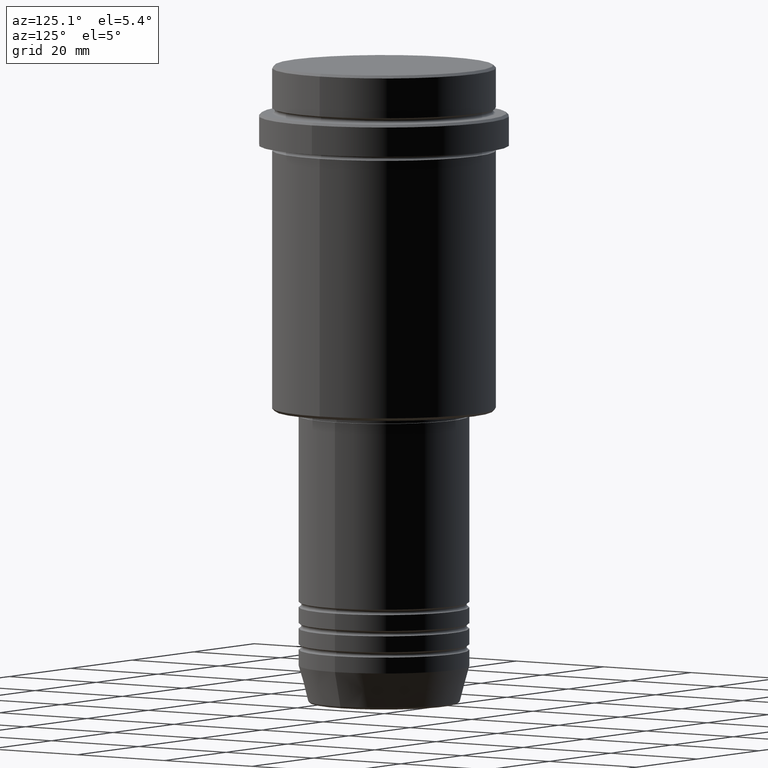
[diagram: clean part render]
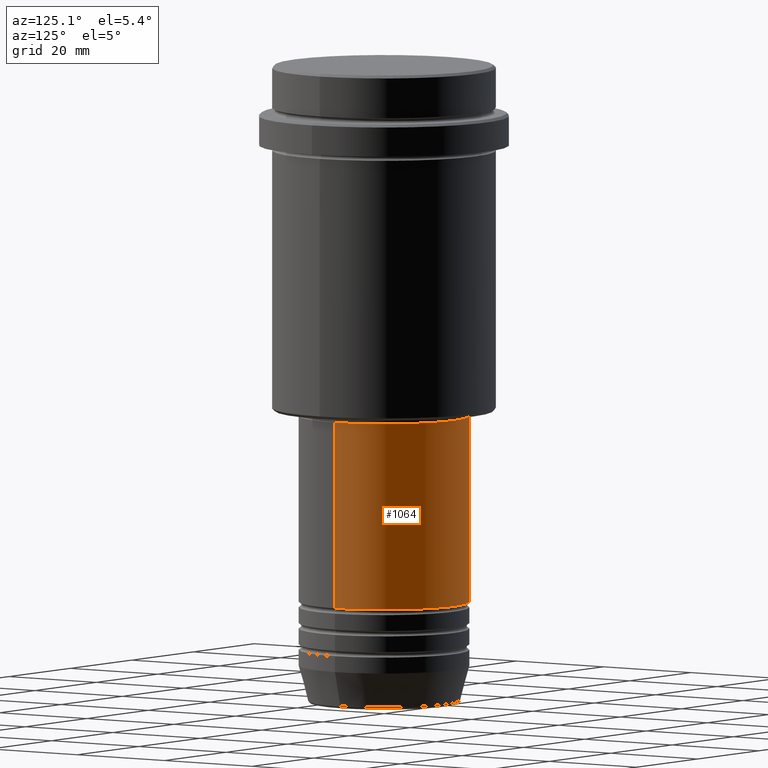
[diagram: same view with one face highlighted and labeled with its STEP entity id]
A machine part, auxiliary view. The second image highlights one B-rep face of the part: STEP entity #1064.
In plain terms, the highlighted cylindrical surface (partial cylindrical patch) has radius 16 mm, axis along (-0, -0, 1).
Its self-contained STEP definition (entity closure, byte-faithful):
#15 = AXIS2_PLACEMENT_3D ( 'NONE', #217, #95, #340 ) ;
#83 = CIRCLE ( 'NONE', #416, 16.00000000000000355 ) ;
#95 = DIRECTION ( 'NONE',  ( -0.000000000000000000, -0.000000000000000000, 1.000000000000000000 ) ) ;
#100 = DIRECTION ( 'NONE',  ( 1.000000000000000000, 0.000000000000000000, 0.000000000000000000 ) ) ;
#147 = VECTOR ( 'NONE', #567, 1000.000000000000000 ) ;
#164 = CARTESIAN_POINT ( 'NONE',  ( 0.000000000000000000, 0.000000000000000000, -66.00000000000000000 ) ) ;
#217 = CARTESIAN_POINT ( 'NONE',  ( 0.000000000000000000, 0.000000000000000000, 0.000000000000000000 ) ) ;
#244 = EDGE_CURVE ( 'NONE', #341, #1060, #1348, .T. ) ;
#280 = CARTESIAN_POINT ( 'NONE',  ( 16.00000000000000000, 0.000000000000000000, 0.000000000000000000 ) ) ;
#292 = DIRECTION ( 'NONE',  ( -0.000000000000000000, -0.000000000000000000, 1.000000000000000000 ) ) ;
#317 = EDGE_CURVE ( 'NONE', #1136, #637, #384, .T. ) ;
#340 = DIRECTION ( 'NONE',  ( 1.000000000000000000, 0.000000000000000000, 0.000000000000000000 ) ) ;
#341 = VERTEX_POINT ( 'NONE', #1062 ) ;
#384 = LINE ( 'NONE', #280, #147 ) ;
#416 = AXIS2_PLACEMENT_3D ( 'NONE', #164, #292, #730 ) ;
#528 = EDGE_CURVE ( 'NONE', #1136, #341, #548, .T. ) ;
#544 = CARTESIAN_POINT ( 'NONE',  ( 16.00000000000000000, 0.000000000000000000, -100.9999999999999005 ) ) ;
#548 = CIRCLE ( 'NONE', #731, 16.00000000000000000 ) ;
#567 = DIRECTION ( 'NONE',  ( -0.000000000000000000, -0.000000000000000000, 1.000000000000000000 ) ) ;
#637 = VERTEX_POINT ( 'NONE', #1267 ) ;
#658 = ORIENTED_EDGE ( 'NONE', *, *, #1408, .F. ) ;
#663 = FACE_OUTER_BOUND ( 'NONE', #677, .T. ) ;
#677 = EDGE_LOOP ( 'NONE', ( #1213, #799, #658, #1350 ) ) ;
#730 = DIRECTION ( 'NONE',  ( 1.000000000000000000, 0.000000000000000000, 0.000000000000000000 ) ) ;
#731 = AXIS2_PLACEMENT_3D ( 'NONE', #843, #1268, #100 ) ;
#799 = ORIENTED_EDGE ( 'NONE', *, *, #244, .T. ) ;
#804 = VECTOR ( 'NONE', #1138, 1000.000000000000000 ) ;
#843 = CARTESIAN_POINT ( 'NONE',  ( 0.000000000000000000, 0.000000000000000000, -100.9999999999999005 ) ) ;
#1025 = CARTESIAN_POINT ( 'NONE',  ( -16.00000000000000000, 1.959434878635765131E-15, 0.000000000000000000 ) ) ;
#1060 = VERTEX_POINT ( 'NONE', #1201 ) ;
#1062 = CARTESIAN_POINT ( 'NONE',  ( -16.00000000000000000, 1.959434878635765131E-15, -100.9999999999999005 ) ) ;
#1064 = ADVANCED_FACE ( 'NONE', ( #663 ), #1416, .T. ) ;
#1136 = VERTEX_POINT ( 'NONE', #544 ) ;
#1138 = DIRECTION ( 'NONE',  ( -0.000000000000000000, -0.000000000000000000, 1.000000000000000000 ) ) ;
#1201 = CARTESIAN_POINT ( 'NONE',  ( -16.00000000000000355, 1.959434878635765526E-15, -66.00000000000000000 ) ) ;
#1213 = ORIENTED_EDGE ( 'NONE', *, *, #528, .T. ) ;
#1267 = CARTESIAN_POINT ( 'NONE',  ( 16.00000000000000355, 0.000000000000000000, -66.00000000000000000 ) ) ;
#1268 = DIRECTION ( 'NONE',  ( -0.000000000000000000, -0.000000000000000000, 1.000000000000000000 ) ) ;
#1348 = LINE ( 'NONE', #1025, #804 ) ;
#1350 = ORIENTED_EDGE ( 'NONE', *, *, #317, .F. ) ;
#1408 = EDGE_CURVE ( 'NONE', #637, #1060, #83, .T. ) ;
#1416 = CYLINDRICAL_SURFACE ( 'NONE', #15, 16.00000000000000000 ) ;